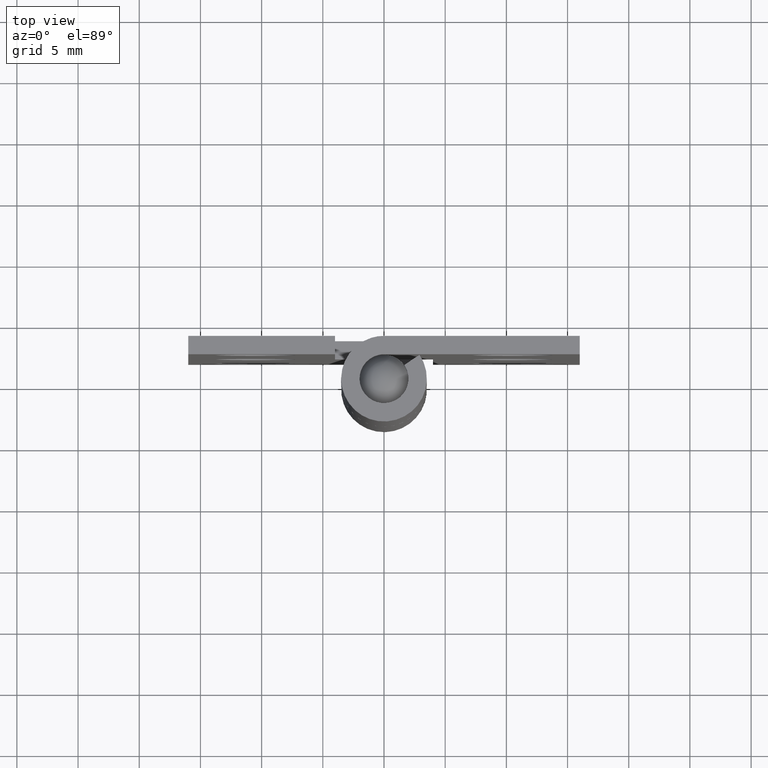
[diagram: clean part render]
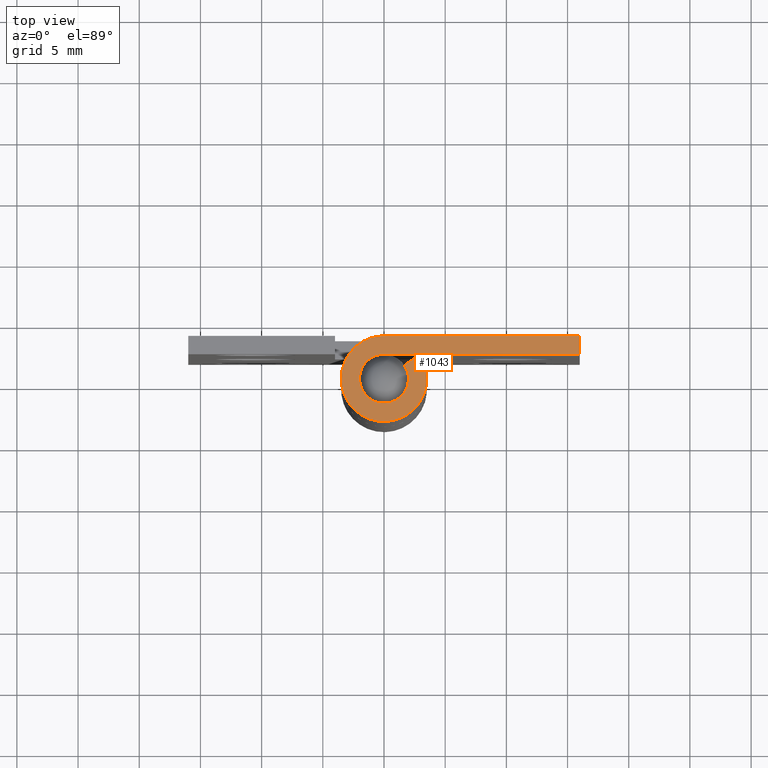
[diagram: same view with one face highlighted and labeled with its STEP entity id]
A machine part, top view. The second image highlights one B-rep face of the part: STEP entity #1043.
In plain terms, the highlighted face is a freeform B-spline surface patch.
Its self-contained STEP definition (entity closure, byte-faithful):
#966=CARTESIAN_POINT('',(-4.473275455486481,-3.846651058438452,50.0));
#967=CARTESIAN_POINT('',(16.973989828414851,-3.846651058438452,50.0));
#968=CARTESIAN_POINT('',(-4.473275455486481,3.849507504033255,50.0));
#969=CARTESIAN_POINT('',(16.973989828414851,3.849507504033255,50.0));
#970=B_SPLINE_SURFACE_WITH_KNOTS('',1,1,((#966,#968),(#967,#969)),.UNSPECIFIED.,.F.,.F.,.U.,(2,2),(2,2),(0.0,21.447265283901331),(0.0,7.696158562471706),.UNSPECIFIED.);
#971=CARTESIAN_POINT('',(2.906458325866725,1.950000000000000,50.0));
#972=VERTEX_POINT('',#971);
#973=CARTESIAN_POINT('',(0.0,3.500000000000000,50.0));
#974=VERTEX_POINT('',#973);
#975=CARTESIAN_POINT('',(2.906458325866724,1.950000000000000,50.0));
#976=CARTESIAN_POINT('',(4.428995672699894,-0.319328896485281,50.0));
#977=CARTESIAN_POINT('',(2.596662639363708,-2.346772919848170,50.0));
#978=CARTESIAN_POINT('',(0.764329606027520,-4.374216943211062,50.0));
#979=CARTESIAN_POINT('',(-1.646966909200061,-3.088284313336452,50.0));
#980=CARTESIAN_POINT('',(-4.058263424427635,-1.802351683461845,50.0));
#981=CARTESIAN_POINT('',(-3.395511382448717,0.848824158269075,50.0));
#982=CARTESIAN_POINT('',(-2.732759340469795,3.500000000000000,50.0));
#983=CARTESIAN_POINT('',(0.0,3.500000000000000,50.0));
#991=(BOUNDED_CURVE()B_SPLINE_CURVE(2,(#975,#976,#977,#978,#979,#980,#981,#982,#983),.UNSPECIFIED.,.F.,.U.)B_SPLINE_CURVE_WITH_KNOTS((3,2,2,2,3),(0.0,0.250000000000000,0.500000000000000,0.750000000000000,1.0),.UNSPECIFIED.)CURVE()GEOMETRIC_REPRESENTATION_ITEM()RATIONAL_B_SPLINE_CURVE((1.0,0.788200858942973,1.0,0.788200858942973,1.0,0.788200858942973,1.0,0.788200858942973,1.0))REPRESENTATION_ITEM(''));
#992=EDGE_CURVE('',#972,#974,#991,.T.);
#993=ORIENTED_EDGE('',*,*,#992,.F.);
#994=CARTESIAN_POINT('',(1.660833329066700,1.114285714285716,50.0));
#995=VERTEX_POINT('',#994);
#996=CARTESIAN_POINT('',(1.660833329066700,1.114285714285716,50.0));
#997=CARTESIAN_POINT('',(2.906458325866725,1.950000000000000,50.0));
#998=QUASI_UNIFORM_CURVE('',1,(#996,#997),.UNSPECIFIED.,.F.,.U.);
#999=EDGE_CURVE('',#995,#972,#998,.T.);
#1000=ORIENTED_EDGE('',*,*,#999,.F.);
#1001=CARTESIAN_POINT('',(0.0,2.0,50.0));
#1002=VERTEX_POINT('',#1001);
#1003=CARTESIAN_POINT('',(1.660833329066698,1.114285714285716,50.0));
#1004=CARTESIAN_POINT('',(2.530854670114226,-0.182473655134445,49.999999999999993));
#1005=CARTESIAN_POINT('',(1.483807222493547,-1.341013097056097,50.0));
#1006=CARTESIAN_POINT('',(0.436759774872868,-2.499552538977749,49.999999999999993));
#1007=CARTESIAN_POINT('',(-0.941123948114321,-1.764733893335115,50.0));
#1008=CARTESIAN_POINT('',(-2.319007671101507,-1.029915247692483,49.999999999999993));
#1009=CARTESIAN_POINT('',(-1.940292218542124,0.485042376153757,50.0));
#1010=CARTESIAN_POINT('',(-1.561576765982740,2.000000000000000,49.999999999999993));
#1011=CARTESIAN_POINT('',(0.0,2.0,50.0));
#1019=(BOUNDED_CURVE()B_SPLINE_CURVE(2,(#1003,#1004,#1005,#1006,#1007,#1008,#1009,#1010,#1011),.UNSPECIFIED.,.F.,.U.)B_SPLINE_CURVE_WITH_KNOTS((3,2,2,2,3),(0.0,0.250000000000000,0.500000000000000,0.750000000000000,1.0),.UNSPECIFIED.)CURVE()GEOMETRIC_REPRESENTATION_ITEM()RATIONAL_B_SPLINE_CURVE((1.0,0.788200858942972,1.0,0.788200858942972,1.0,0.788200858942972,1.0,0.788200858942972,1.0))REPRESENTATION_ITEM(''));
#1020=EDGE_CURVE('',#995,#1002,#1019,.T.);
#1021=ORIENTED_EDGE('',*,*,#1020,.T.);
#1022=CARTESIAN_POINT('',(16.0,2.0,50.0));
#1023=VERTEX_POINT('',#1022);
#1024=CARTESIAN_POINT('',(16.0,2.0,50.0));
#1025=CARTESIAN_POINT('',(0.0,2.0,50.0));
#1026=QUASI_UNIFORM_CURVE('',1,(#1024,#1025),.UNSPECIFIED.,.F.,.U.);
#1027=EDGE_CURVE('',#1023,#1002,#1026,.T.);
#1028=ORIENTED_EDGE('',*,*,#1027,.F.);
#1029=CARTESIAN_POINT('',(16.0,3.500000000000000,50.0));
#1030=VERTEX_POINT('',#1029);
#1031=CARTESIAN_POINT('',(16.0,3.500000000000000,50.0));
#1032=CARTESIAN_POINT('',(16.0,2.0,50.0));
#1033=QUASI_UNIFORM_CURVE('',1,(#1031,#1032),.UNSPECIFIED.,.F.,.U.);
#1034=EDGE_CURVE('',#1030,#1023,#1033,.T.);
#1035=ORIENTED_EDGE('',*,*,#1034,.F.);
#1036=CARTESIAN_POINT('',(0.0,3.500000000000000,50.0));
#1037=CARTESIAN_POINT('',(16.0,3.500000000000000,50.0));
#1038=QUASI_UNIFORM_CURVE('',1,(#1036,#1037),.UNSPECIFIED.,.F.,.U.);
#1039=EDGE_CURVE('',#974,#1030,#1038,.T.);
#1040=ORIENTED_EDGE('',*,*,#1039,.F.);
#1041=EDGE_LOOP('',(#993,#1000,#1021,#1028,#1035,#1040));
#1042=FACE_OUTER_BOUND('',#1041,.T.);
#1043=ADVANCED_FACE('',(#1042),#970,.T.);